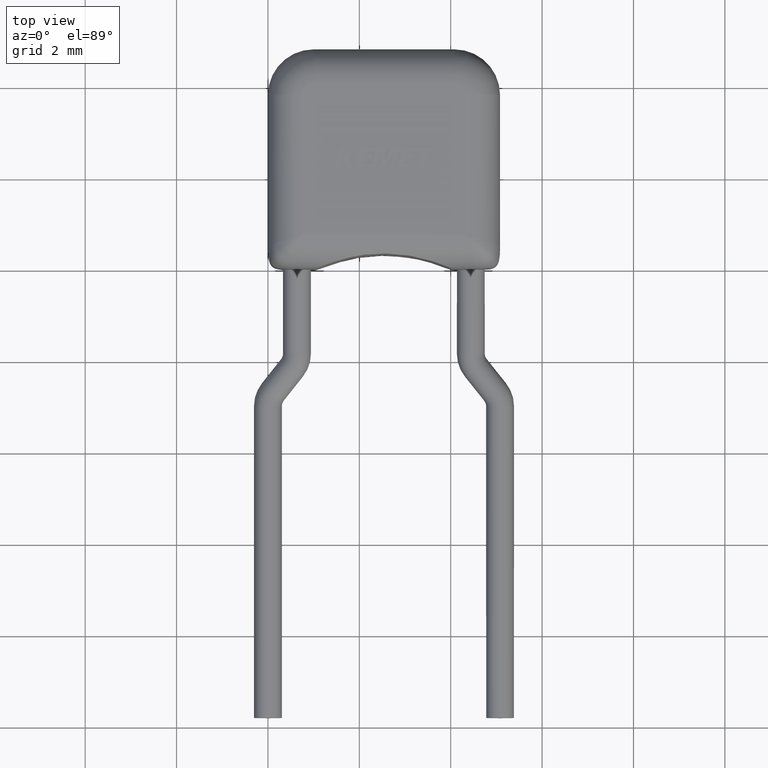
[diagram: clean part render]
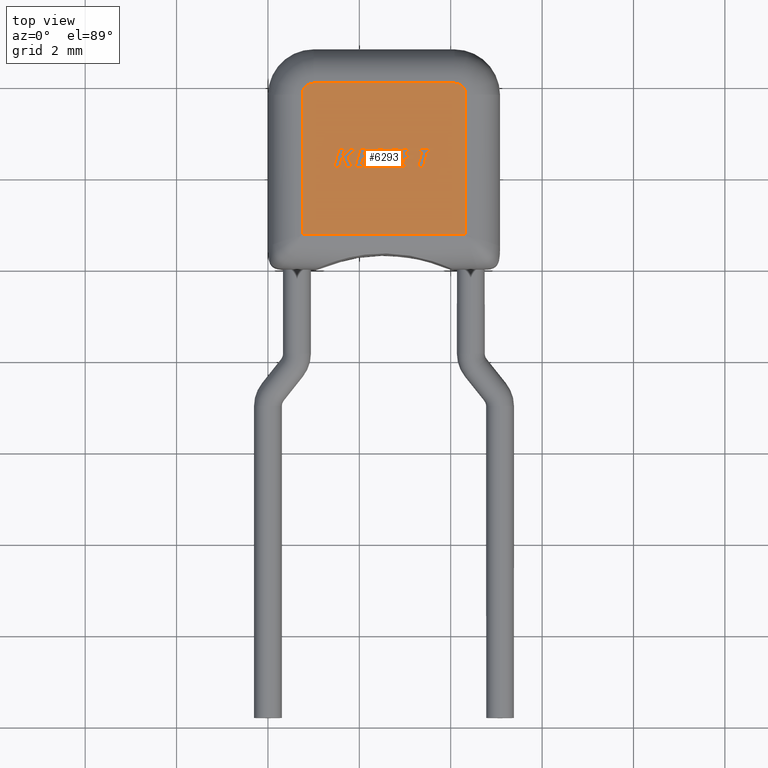
[diagram: same view with one face highlighted and labeled with its STEP entity id]
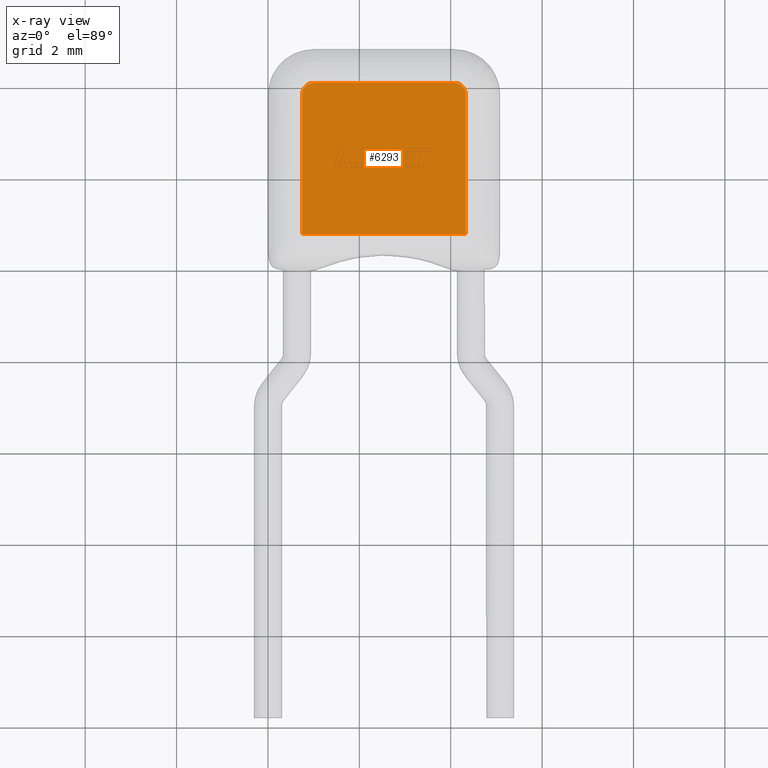
[diagram: x-ray of the same camera — body ghosted, the highlighted face saturated]
A machine part, top view. The second image highlights one B-rep face of the part: STEP entity #6293.
The next image is the same camera in x-ray: the body ghosted, the highlighted face saturated — about 0% of this face is hidden behind the body in this view.
In plain terms, the highlighted planar face has unit normal (0, 0, -1).
Its self-contained STEP definition (entity closure, byte-faithful):
#74 = DIRECTION ( 'NONE',  ( 0.0000000000000000000, 0.0000000000000000000, -1.000000000000000000 ) ) ;
#138 = ORIENTED_EDGE ( 'NONE', *, *, #682, .T. ) ;
#339 = DIRECTION ( 'NONE',  ( -0.0000000000000000000, -0.0000000000000000000, 1.000000000000000000 ) ) ;
#542 = VERTEX_POINT ( 'NONE', #4774 ) ;
#625 = DIRECTION ( 'NONE',  ( 1.000000000000000000, -0.0000000000000000000, 0.0000000000000000000 ) ) ;
#682 = EDGE_CURVE ( 'NONE', #542, #5831, #750, .T. ) ;
#750 = LINE ( 'NONE', #3802, #6230 ) ;
#914 = CARTESIAN_POINT ( 'NONE',  ( 0.7499999999999997800, 3.810759999999999700, 3.180000000000000200 ) ) ;
#1117 = PLANE ( 'NONE',  #3081 ) ;
#1180 = EDGE_CURVE ( 'NONE', #3868, #1277, #2914, .T. ) ;
#1277 = VERTEX_POINT ( 'NONE', #914 ) ;
#1484 = CARTESIAN_POINT ( 'NONE',  ( 4.079999999999999200, 3.810759999999999700, 3.180000000000000200 ) ) ;
#1640 = AXIS2_PLACEMENT_3D ( 'NONE', #1484, #339, #5647 ) ;
#1987 = VERTEX_POINT ( 'NONE', #6118 ) ;
#2228 = ORIENTED_EDGE ( 'NONE', *, *, #6515, .T. ) ;
#2380 = DIRECTION ( 'NONE',  ( -0.0000000000000000000, -0.0000000000000000000, 1.000000000000000000 ) ) ;
#2549 = EDGE_CURVE ( 'NONE', #1277, #542, #5840, .T. ) ;
#2602 = CIRCLE ( 'NONE', #1640, 0.2500000000000002200 ) ;
#2687 = ORIENTED_EDGE ( 'NONE', *, *, #2935, .T. ) ;
#2724 = CARTESIAN_POINT ( 'NONE',  ( 0.0000000000000000000, 0.0000000000000000000, 3.180000000000000200 ) ) ;
#2884 = LINE ( 'NONE', #4219, #3777 ) ;
#2914 = CIRCLE ( 'NONE', #6711, 0.2500000000000000000 ) ;
#2919 = CARTESIAN_POINT ( 'NONE',  ( 4.330000000000000100, 3.810759999999999700, 3.180000000000000200 ) ) ;
#2935 = EDGE_CURVE ( 'NONE', #1987, #3868, #5586, .T. ) ;
#3081 = AXIS2_PLACEMENT_3D ( 'NONE', #2724, #74, #5954 ) ;
#3206 = VERTEX_POINT ( 'NONE', #2919 ) ;
#3613 = VECTOR ( 'NONE', #4814, 1000.000000000000000 ) ;
#3777 = VECTOR ( 'NONE', #6884, 1000.000000000000000 ) ;
#3802 = CARTESIAN_POINT ( 'NONE',  ( 0.0000000000000000000, 0.7499999999999998900, 3.180000000000000200 ) ) ;
#3868 = VERTEX_POINT ( 'NONE', #4445 ) ;
#3939 = DIRECTION ( 'NONE',  ( -1.000000000000000000, 0.0000000000000000000, 0.0000000000000000000 ) ) ;
#3990 = DIRECTION ( 'NONE',  ( -1.000000000000000000, 0.0000000000000000000, 0.0000000000000000000 ) ) ;
#4026 = VECTOR ( 'NONE', #3990, 1000.000000000000000 ) ;
#4059 = CARTESIAN_POINT ( 'NONE',  ( 0.0000000000000000000, 4.060760000000000100, 3.180000000000000200 ) ) ;
#4219 = CARTESIAN_POINT ( 'NONE',  ( 4.330000000000000100, 0.0000000000000000000, 3.180000000000000200 ) ) ;
#4445 = CARTESIAN_POINT ( 'NONE',  ( 0.9999999999999997800, 4.060760000000000100, 3.180000000000000200 ) ) ;
#4466 = ORIENTED_EDGE ( 'NONE', *, *, #5754, .T. ) ;
#4774 = CARTESIAN_POINT ( 'NONE',  ( 0.7499999999999998900, 0.7499999999999998900, 3.180000000000000200 ) ) ;
#4814 = DIRECTION ( 'NONE',  ( 0.0000000000000000000, -1.000000000000000000, 0.0000000000000000000 ) ) ;
#5346 = ORIENTED_EDGE ( 'NONE', *, *, #1180, .T. ) ;
#5368 = EDGE_LOOP ( 'NONE', ( #4466, #2228, #2687, #5346, #6358, #138 ) ) ;
#5553 = CARTESIAN_POINT ( 'NONE',  ( 0.9999999999999997800, 3.810759999999999700, 3.180000000000000200 ) ) ;
#5586 = LINE ( 'NONE', #4059, #4026 ) ;
#5647 = DIRECTION ( 'NONE',  ( -1.000000000000000000, 0.0000000000000000000, 0.0000000000000000000 ) ) ;
#5754 = EDGE_CURVE ( 'NONE', #5831, #3206, #2884, .T. ) ;
#5831 = VERTEX_POINT ( 'NONE', #6465 ) ;
#5840 = LINE ( 'NONE', #5898, #3613 ) ;
#5898 = CARTESIAN_POINT ( 'NONE',  ( 0.7499999999999998900, 0.0000000000000000000, 3.180000000000000200 ) ) ;
#5954 = DIRECTION ( 'NONE',  ( -1.000000000000000000, 0.0000000000000000000, -0.0000000000000000000 ) ) ;
#6118 = CARTESIAN_POINT ( 'NONE',  ( 4.079999999999999200, 4.060760000000000100, 3.180000000000000200 ) ) ;
#6230 = VECTOR ( 'NONE', #625, 1000.000000000000000 ) ;
#6293 = ADVANCED_FACE ( 'NONE', ( #6767 ), #1117, .F. ) ;
#6358 = ORIENTED_EDGE ( 'NONE', *, *, #2549, .T. ) ;
#6465 = CARTESIAN_POINT ( 'NONE',  ( 4.330000000000000100, 0.7499999999999998900, 3.180000000000000200 ) ) ;
#6515 = EDGE_CURVE ( 'NONE', #3206, #1987, #2602, .T. ) ;
#6711 = AXIS2_PLACEMENT_3D ( 'NONE', #5553, #2380, #3939 ) ;
#6767 = FACE_OUTER_BOUND ( 'NONE', #5368, .T. ) ;
#6884 = DIRECTION ( 'NONE',  ( 0.0000000000000000000, 1.000000000000000000, 0.0000000000000000000 ) ) ;